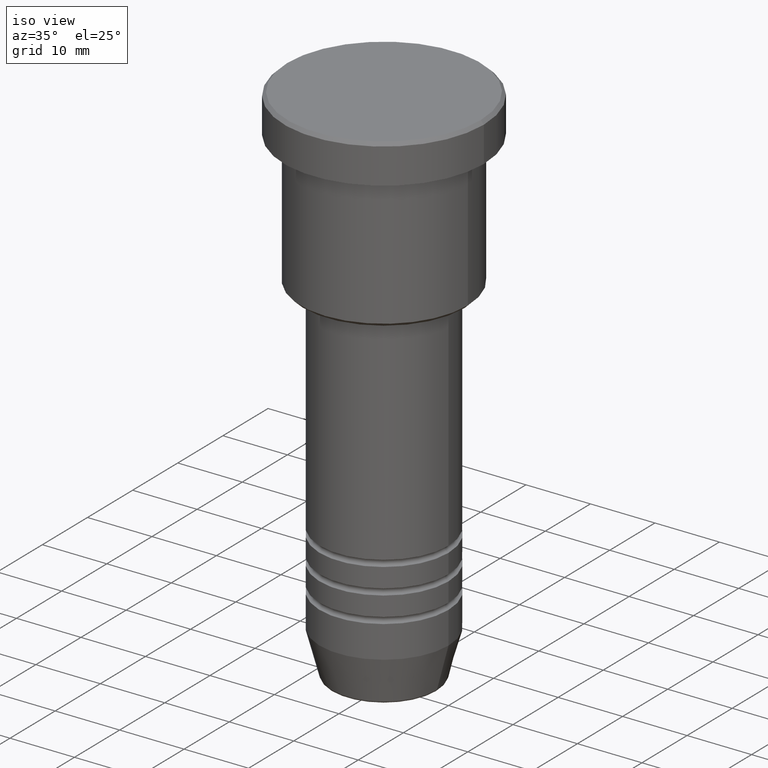
[diagram: clean part render]
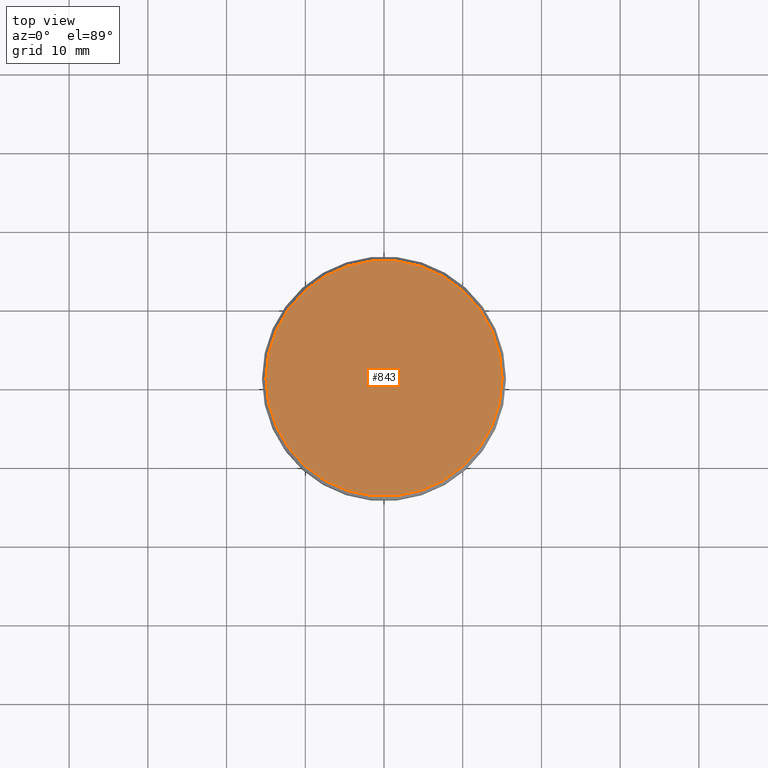
[diagram: tour spotlight — one face highlighted and labeled with its STEP entity id]
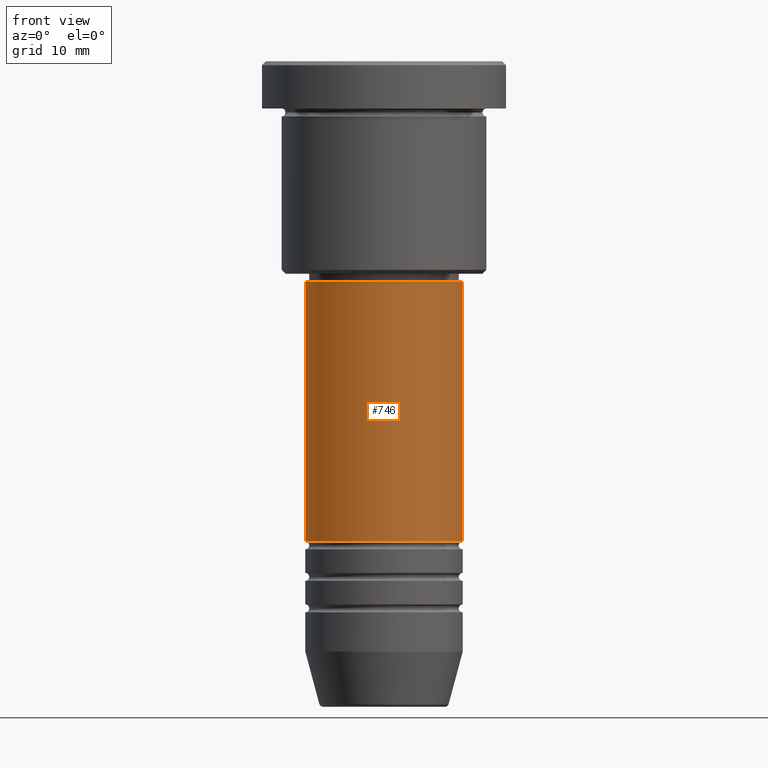
[diagram: tour spotlight — one face highlighted and labeled with its STEP entity id]
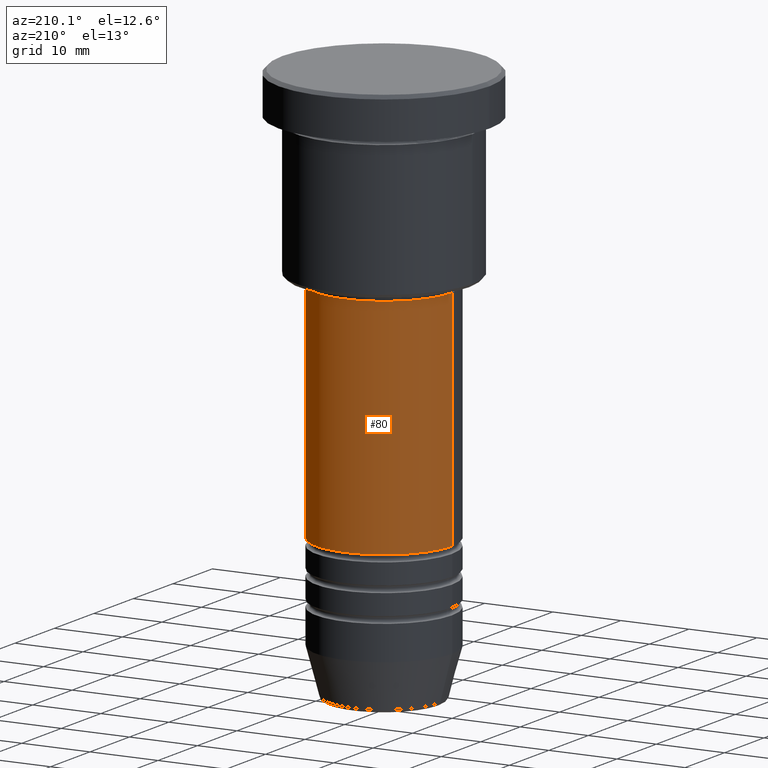
[diagram: tour spotlight — one face highlighted and labeled with its STEP entity id]
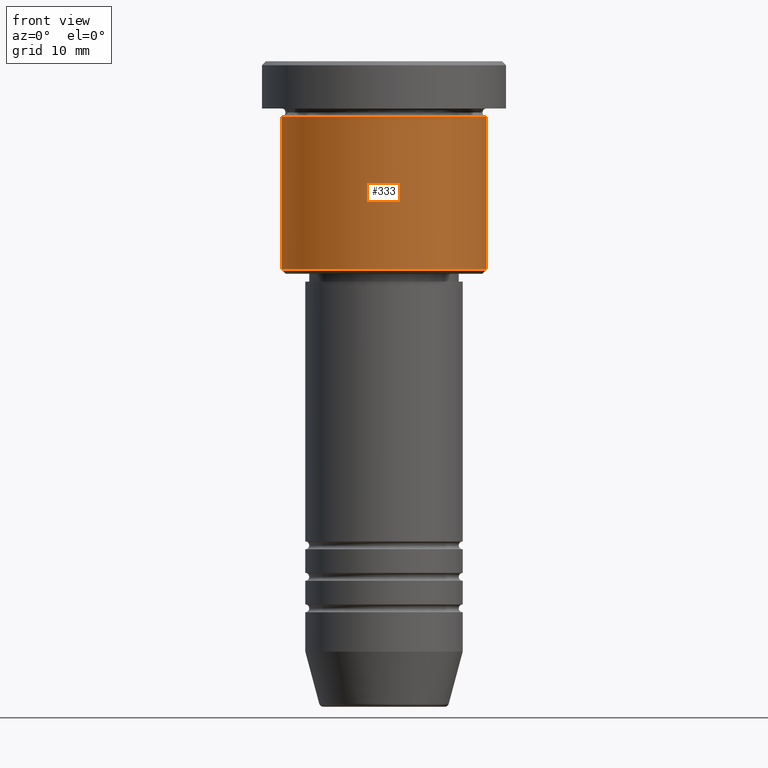
[diagram: tour spotlight — one face highlighted and labeled with its STEP entity id]
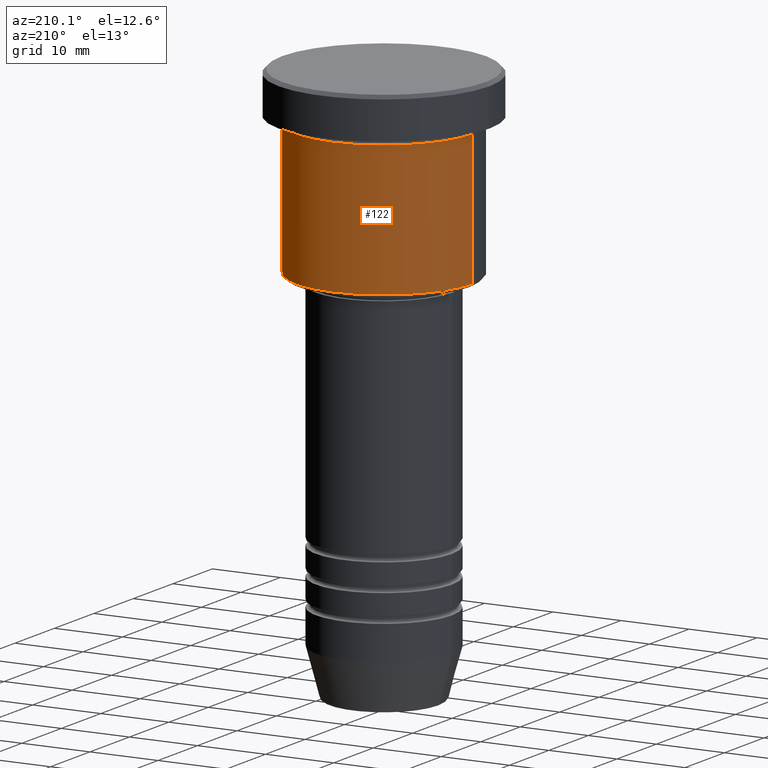
[diagram: tour spotlight — one face highlighted and labeled with its STEP entity id]
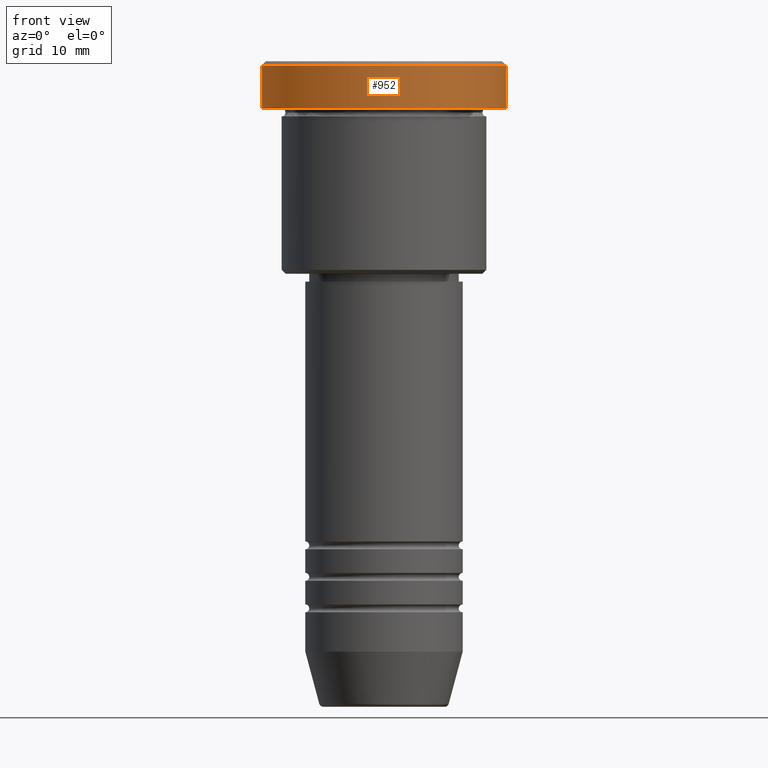
[diagram: tour spotlight — one face highlighted and labeled with its STEP entity id]
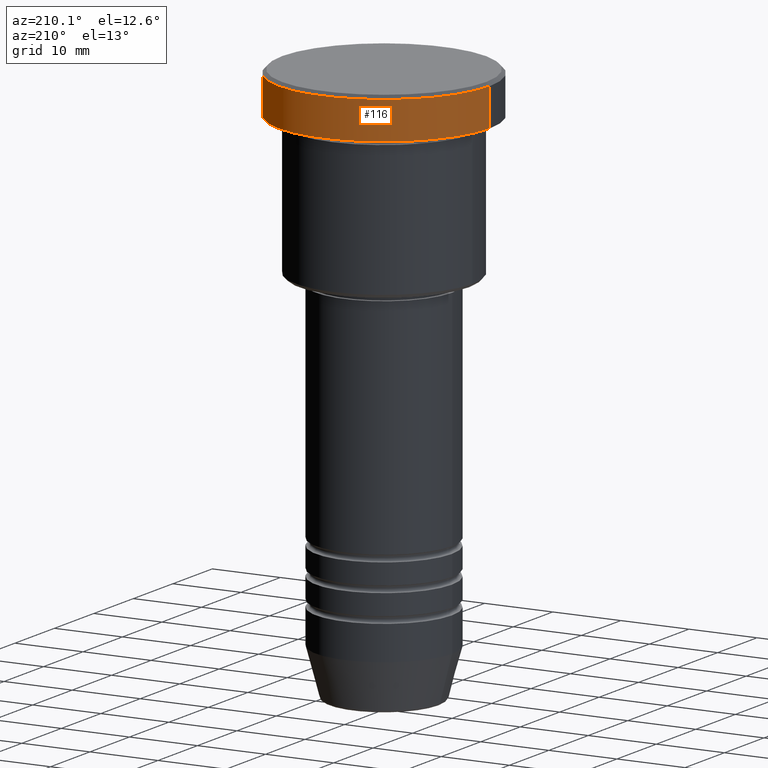
[diagram: tour spotlight — one face highlighted and labeled with its STEP entity id]
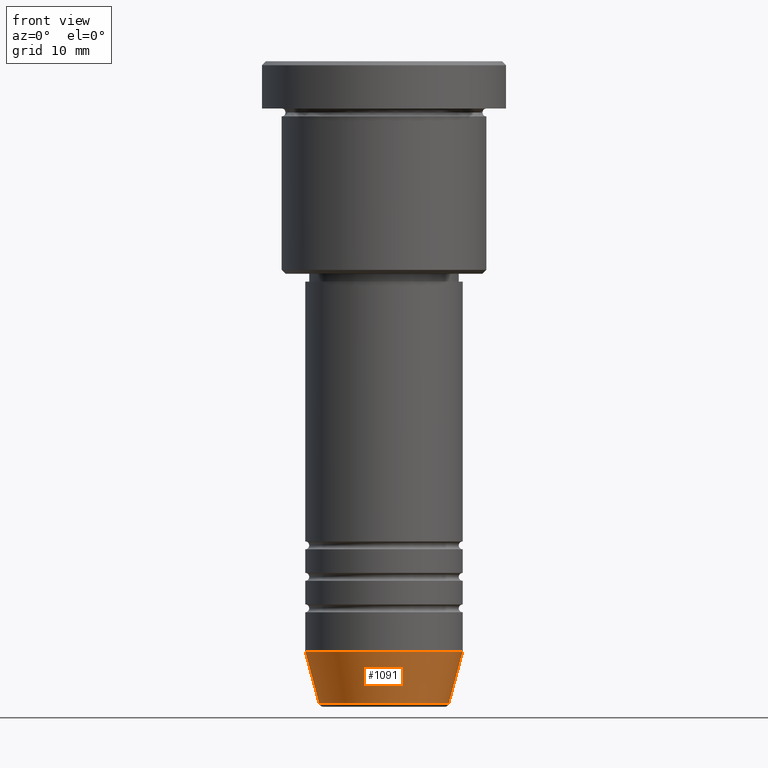
[diagram: tour spotlight — one face highlighted and labeled with its STEP entity id]
A machine part: a face-by-face anatomy tour. The part has 43 B-rep faces; the first image is the clean iso view, then the 8 largest visible faces are spotlighted one at a time (largest first), each with its STEP entity span.

Face 1 — top view, entity #843. In plain terms, the highlighted planar face has unit normal (0, -0, 1).
Definition (entity closure, byte-faithful):
#58 = VERTEX_POINT ( 'NONE', #255 ) ;
#68 = CIRCLE ( 'NONE', #145, 15.00000000000000000 ) ;
#101 = DIRECTION ( 'NONE',  ( 1.000000000000000000, 0.000000000000000000, 0.000000000000000000 ) ) ;
#145 = AXIS2_PLACEMENT_3D ( 'NONE', #616, #1078, #352 ) ;
#181 = DIRECTION ( 'NONE',  ( 1.000000000000000000, 0.000000000000000000, 0.000000000000000000 ) ) ;
#235 = EDGE_LOOP ( 'NONE', ( #338, #982 ) ) ;
#255 = CARTESIAN_POINT ( 'NONE',  ( -15.00000000000000000, 0.000000000000000000, 0.000000000000000000 ) ) ;
#338 = ORIENTED_EDGE ( 'NONE', *, *, #1148, .T. ) ;
#351 = DIRECTION ( 'NONE',  ( 0.000000000000000000, -0.000000000000000000, 1.000000000000000000 ) ) ;
#352 = DIRECTION ( 'NONE',  ( 1.000000000000000000, 0.000000000000000000, 0.000000000000000000 ) ) ;
#367 = AXIS2_PLACEMENT_3D ( 'NONE', #467, #1012, #101 ) ;
#400 = CARTESIAN_POINT ( 'NONE',  ( 15.00000000000000000, 1.867586368699713376E-15, 0.000000000000000000 ) ) ;
#467 = CARTESIAN_POINT ( 'NONE',  ( 0.000000000000000000, 0.000000000000000000, 0.000000000000000000 ) ) ;
#616 = CARTESIAN_POINT ( 'NONE',  ( 0.000000000000000000, 0.000000000000000000, 0.000000000000000000 ) ) ;
#676 = EDGE_CURVE ( 'NONE', #947, #58, #1108, .T. ) ;
#779 = AXIS2_PLACEMENT_3D ( 'NONE', #1087, #351, #181 ) ;
#843 = ADVANCED_FACE ( 'NONE', ( #986 ), #1172, .T. ) ;
#947 = VERTEX_POINT ( 'NONE', #400 ) ;
#982 = ORIENTED_EDGE ( 'NONE', *, *, #676, .T. ) ;
#986 = FACE_OUTER_BOUND ( 'NONE', #235, .T. ) ;
#1012 = DIRECTION ( 'NONE',  ( -0.000000000000000000, -0.000000000000000000, 1.000000000000000000 ) ) ;
#1078 = DIRECTION ( 'NONE',  ( -0.000000000000000000, -0.000000000000000000, 1.000000000000000000 ) ) ;
#1087 = CARTESIAN_POINT ( 'NONE',  ( 0.000000000000000000, 0.000000000000000000, 0.000000000000000000 ) ) ;
#1108 = CIRCLE ( 'NONE', #367, 15.00000000000000000 ) ;
#1148 = EDGE_CURVE ( 'NONE', #58, #947, #68, .T. ) ;
#1172 = PLANE ( 'NONE',  #779 ) ;

Face 2 — front view, entity #746. In plain terms, the highlighted cylindrical surface (partial cylindrical patch) has radius 10 mm, axis along (-0, -0, 1).
Definition (entity closure, byte-faithful):
#13 = CARTESIAN_POINT ( 'NONE',  ( 10.00000000000000000, 0.000000000000000000, 0.000000000000000000 ) ) ;
#35 = AXIS2_PLACEMENT_3D ( 'NONE', #860, #584, #668 ) ;
#72 = EDGE_CURVE ( 'NONE', #1007, #765, #1176, .T. ) ;
#75 = DIRECTION ( 'NONE',  ( -0.000000000000000000, -0.000000000000000000, 1.000000000000000000 ) ) ;
#85 = CARTESIAN_POINT ( 'NONE',  ( -10.00000000000000178, 1.224646799147353454E-15, -60.99999999999988631 ) ) ;
#94 = VERTEX_POINT ( 'NONE', #966 ) ;
#157 = CARTESIAN_POINT ( 'NONE',  ( 9.999999999999998224, 0.000000000000000000, -28.00000000000001776 ) ) ;
#276 = DIRECTION ( 'NONE',  ( 1.000000000000000000, 0.000000000000000000, 0.000000000000000000 ) ) ;
#289 = FACE_OUTER_BOUND ( 'NONE', #844, .T. ) ;
#339 = EDGE_CURVE ( 'NONE', #865, #94, #576, .T. ) ;
#385 = DIRECTION ( 'NONE',  ( -0.000000000000000000, -0.000000000000000000, 1.000000000000000000 ) ) ;
#387 = VECTOR ( 'NONE', #688, 1000.000000000000000 ) ;
#565 = CARTESIAN_POINT ( 'NONE',  ( -9.999999999999998224, 1.224646799147353256E-15, -28.00000000000001776 ) ) ;
#568 = ORIENTED_EDGE ( 'NONE', *, *, #339, .T. ) ;
#571 = CARTESIAN_POINT ( 'NONE',  ( 0.000000000000000000, 0.000000000000000000, 0.000000000000000000 ) ) ;
#576 = CIRCLE ( 'NONE', #35, 10.00000000000000178 ) ;
#580 = CYLINDRICAL_SURFACE ( 'NONE', #649, 10.00000000000000000 ) ;
#584 = DIRECTION ( 'NONE',  ( -0.000000000000000000, -0.000000000000000000, 1.000000000000000000 ) ) ;
#598 = LINE ( 'NONE', #1067, #387 ) ;
#649 = AXIS2_PLACEMENT_3D ( 'NONE', #571, #661, #841 ) ;
#651 = VECTOR ( 'NONE', #385, 1000.000000000000000 ) ;
#661 = DIRECTION ( 'NONE',  ( -0.000000000000000000, -0.000000000000000000, 1.000000000000000000 ) ) ;
#668 = DIRECTION ( 'NONE',  ( 1.000000000000000000, 0.000000000000000000, 0.000000000000000000 ) ) ;
#688 = DIRECTION ( 'NONE',  ( -0.000000000000000000, -0.000000000000000000, 1.000000000000000000 ) ) ;
#746 = ADVANCED_FACE ( 'NONE', ( #289 ), #580, .T. ) ;
#765 = VERTEX_POINT ( 'NONE', #157 ) ;
#768 = EDGE_CURVE ( 'NONE', #865, #1007, #598, .T. ) ;
#791 = AXIS2_PLACEMENT_3D ( 'NONE', #1164, #75, #276 ) ;
#831 = LINE ( 'NONE', #13, #651 ) ;
#841 = DIRECTION ( 'NONE',  ( 1.000000000000000000, 0.000000000000000000, 0.000000000000000000 ) ) ;
#844 = EDGE_LOOP ( 'NONE', ( #874, #568, #1025, #1031 ) ) ;
#860 = CARTESIAN_POINT ( 'NONE',  ( 0.000000000000000000, 0.000000000000000000, -60.99999999999988631 ) ) ;
#865 = VERTEX_POINT ( 'NONE', #85 ) ;
#874 = ORIENTED_EDGE ( 'NONE', *, *, #768, .F. ) ;
#966 = CARTESIAN_POINT ( 'NONE',  ( 10.00000000000000178, 0.000000000000000000, -60.99999999999988631 ) ) ;
#1007 = VERTEX_POINT ( 'NONE', #565 ) ;
#1021 = EDGE_CURVE ( 'NONE', #94, #765, #831, .T. ) ;
#1025 = ORIENTED_EDGE ( 'NONE', *, *, #1021, .T. ) ;
#1031 = ORIENTED_EDGE ( 'NONE', *, *, #72, .F. ) ;
#1067 = CARTESIAN_POINT ( 'NONE',  ( -10.00000000000000000, 1.224646799147353256E-15, 0.000000000000000000 ) ) ;
#1164 = CARTESIAN_POINT ( 'NONE',  ( 0.000000000000000000, 0.000000000000000000, -28.00000000000001776 ) ) ;
#1176 = CIRCLE ( 'NONE', #791, 9.999999999999998224 ) ;

Face 3 — auxiliary view, entity #80. In plain terms, the highlighted cylindrical surface (partial cylindrical patch) has radius 10 mm, axis along (-0, -0, 1).
Definition (entity closure, byte-faithful):
#13 = CARTESIAN_POINT ( 'NONE',  ( 10.00000000000000000, 0.000000000000000000, 0.000000000000000000 ) ) ;
#39 = ORIENTED_EDGE ( 'NONE', *, *, #1064, .T. ) ;
#80 = ADVANCED_FACE ( 'NONE', ( #796 ), #548, .T. ) ;
#85 = CARTESIAN_POINT ( 'NONE',  ( -10.00000000000000178, 1.224646799147353454E-15, -60.99999999999988631 ) ) ;
#94 = VERTEX_POINT ( 'NONE', #966 ) ;
#102 = CARTESIAN_POINT ( 'NONE',  ( 0.000000000000000000, 0.000000000000000000, -28.00000000000001776 ) ) ;
#111 = DIRECTION ( 'NONE',  ( -0.000000000000000000, -0.000000000000000000, 1.000000000000000000 ) ) ;
#157 = CARTESIAN_POINT ( 'NONE',  ( 9.999999999999998224, 0.000000000000000000, -28.00000000000001776 ) ) ;
#385 = DIRECTION ( 'NONE',  ( -0.000000000000000000, -0.000000000000000000, 1.000000000000000000 ) ) ;
#387 = VECTOR ( 'NONE', #688, 1000.000000000000000 ) ;
#408 = AXIS2_PLACEMENT_3D ( 'NONE', #893, #619, #984 ) ;
#472 = CIRCLE ( 'NONE', #611, 10.00000000000000178 ) ;
#498 = DIRECTION ( 'NONE',  ( -0.000000000000000000, -0.000000000000000000, 1.000000000000000000 ) ) ;
#501 = ORIENTED_EDGE ( 'NONE', *, *, #1021, .F. ) ;
#521 = AXIS2_PLACEMENT_3D ( 'NONE', #102, #498, #834 ) ;
#548 = CYLINDRICAL_SURFACE ( 'NONE', #408, 10.00000000000000000 ) ;
#565 = CARTESIAN_POINT ( 'NONE',  ( -9.999999999999998224, 1.224646799147353256E-15, -28.00000000000001776 ) ) ;
#598 = LINE ( 'NONE', #1067, #387 ) ;
#611 = AXIS2_PLACEMENT_3D ( 'NONE', #931, #111, #845 ) ;
#619 = DIRECTION ( 'NONE',  ( -0.000000000000000000, -0.000000000000000000, 1.000000000000000000 ) ) ;
#651 = VECTOR ( 'NONE', #385, 1000.000000000000000 ) ;
#688 = DIRECTION ( 'NONE',  ( -0.000000000000000000, -0.000000000000000000, 1.000000000000000000 ) ) ;
#692 = ORIENTED_EDGE ( 'NONE', *, *, #768, .T. ) ;
#717 = ORIENTED_EDGE ( 'NONE', *, *, #918, .F. ) ;
#763 = CIRCLE ( 'NONE', #521, 9.999999999999998224 ) ;
#765 = VERTEX_POINT ( 'NONE', #157 ) ;
#768 = EDGE_CURVE ( 'NONE', #865, #1007, #598, .T. ) ;
#796 = FACE_OUTER_BOUND ( 'NONE', #1051, .T. ) ;
#831 = LINE ( 'NONE', #13, #651 ) ;
#834 = DIRECTION ( 'NONE',  ( 1.000000000000000000, 0.000000000000000000, 0.000000000000000000 ) ) ;
#845 = DIRECTION ( 'NONE',  ( 1.000000000000000000, 0.000000000000000000, 0.000000000000000000 ) ) ;
#865 = VERTEX_POINT ( 'NONE', #85 ) ;
#893 = CARTESIAN_POINT ( 'NONE',  ( 0.000000000000000000, 0.000000000000000000, 0.000000000000000000 ) ) ;
#918 = EDGE_CURVE ( 'NONE', #765, #1007, #763, .T. ) ;
#931 = CARTESIAN_POINT ( 'NONE',  ( 0.000000000000000000, 0.000000000000000000, -60.99999999999988631 ) ) ;
#966 = CARTESIAN_POINT ( 'NONE',  ( 10.00000000000000178, 0.000000000000000000, -60.99999999999988631 ) ) ;
#984 = DIRECTION ( 'NONE',  ( 1.000000000000000000, 0.000000000000000000, 0.000000000000000000 ) ) ;
#1007 = VERTEX_POINT ( 'NONE', #565 ) ;
#1021 = EDGE_CURVE ( 'NONE', #94, #765, #831, .T. ) ;
#1051 = EDGE_LOOP ( 'NONE', ( #39, #692, #717, #501 ) ) ;
#1064 = EDGE_CURVE ( 'NONE', #94, #865, #472, .T. ) ;
#1067 = CARTESIAN_POINT ( 'NONE',  ( -10.00000000000000000, 1.224646799147353256E-15, 0.000000000000000000 ) ) ;

Face 4 — front view, entity #333. In plain terms, the highlighted cylindrical surface (partial cylindrical patch) has radius 13 mm, axis along (-0, -0, 1).
Definition (entity closure, byte-faithful):
#1 = EDGE_CURVE ( 'NONE', #1079, #195, #685, .T. ) ;
#16 = CARTESIAN_POINT ( 'NONE',  ( 13.00000000000000178, 0.000000000000000000, 0.000000000000000000 ) ) ;
#26 = CARTESIAN_POINT ( 'NONE',  ( -13.00000000000000178, 1.592040838891559293E-15, -6.999999999999995559 ) ) ;
#27 = FACE_OUTER_BOUND ( 'NONE', #940, .T. ) ;
#56 = CARTESIAN_POINT ( 'NONE',  ( 0.000000000000000000, 0.000000000000000000, -6.999999999999995559 ) ) ;
#65 = DIRECTION ( 'NONE',  ( -0.000000000000000000, -0.000000000000000000, 1.000000000000000000 ) ) ;
#190 = CARTESIAN_POINT ( 'NONE',  ( 13.00000000000000178, 0.000000000000000000, -6.999999999999995559 ) ) ;
#195 = VERTEX_POINT ( 'NONE', #190 ) ;
#208 = AXIS2_PLACEMENT_3D ( 'NONE', #462, #65, #1159 ) ;
#231 = ORIENTED_EDGE ( 'NONE', *, *, #644, .T. ) ;
#244 = ORIENTED_EDGE ( 'NONE', *, *, #1006, .F. ) ;
#292 = CYLINDRICAL_SURFACE ( 'NONE', #556, 13.00000000000000178 ) ;
#333 = ADVANCED_FACE ( 'NONE', ( #27 ), #292, .T. ) ;
#402 = CARTESIAN_POINT ( 'NONE',  ( 0.000000000000000000, 0.000000000000000000, 0.000000000000000000 ) ) ;
#427 = AXIS2_PLACEMENT_3D ( 'NONE', #56, #1055, #604 ) ;
#435 = VERTEX_POINT ( 'NONE', #613 ) ;
#462 = CARTESIAN_POINT ( 'NONE',  ( 0.000000000000000000, 0.000000000000000000, -26.50000000000000355 ) ) ;
#488 = VECTOR ( 'NONE', #1010, 1000.000000000000000 ) ;
#556 = AXIS2_PLACEMENT_3D ( 'NONE', #402, #755, #1112 ) ;
#604 = DIRECTION ( 'NONE',  ( 1.000000000000000000, 0.000000000000000000, 0.000000000000000000 ) ) ;
#613 = CARTESIAN_POINT ( 'NONE',  ( 13.00000000000000178, 0.000000000000000000, -26.50000000000000355 ) ) ;
#621 = CARTESIAN_POINT ( 'NONE',  ( -13.00000000000000178, 1.592040838891559293E-15, -26.50000000000000355 ) ) ;
#644 = EDGE_CURVE ( 'NONE', #891, #435, #945, .T. ) ;
#674 = LINE ( 'NONE', #16, #1138 ) ;
#685 = CIRCLE ( 'NONE', #427, 13.00000000000000178 ) ;
#742 = LINE ( 'NONE', #748, #488 ) ;
#748 = CARTESIAN_POINT ( 'NONE',  ( -13.00000000000000178, 1.592040838891559293E-15, 0.000000000000000000 ) ) ;
#755 = DIRECTION ( 'NONE',  ( -0.000000000000000000, -0.000000000000000000, 1.000000000000000000 ) ) ;
#891 = VERTEX_POINT ( 'NONE', #621 ) ;
#934 = EDGE_CURVE ( 'NONE', #435, #195, #674, .T. ) ;
#940 = EDGE_LOOP ( 'NONE', ( #244, #231, #968, #1044 ) ) ;
#945 = CIRCLE ( 'NONE', #208, 13.00000000000000178 ) ;
#964 = DIRECTION ( 'NONE',  ( -0.000000000000000000, -0.000000000000000000, 1.000000000000000000 ) ) ;
#968 = ORIENTED_EDGE ( 'NONE', *, *, #934, .T. ) ;
#1006 = EDGE_CURVE ( 'NONE', #891, #1079, #742, .T. ) ;
#1010 = DIRECTION ( 'NONE',  ( -0.000000000000000000, -0.000000000000000000, 1.000000000000000000 ) ) ;
#1044 = ORIENTED_EDGE ( 'NONE', *, *, #1, .F. ) ;
#1055 = DIRECTION ( 'NONE',  ( -0.000000000000000000, -0.000000000000000000, 1.000000000000000000 ) ) ;
#1079 = VERTEX_POINT ( 'NONE', #26 ) ;
#1112 = DIRECTION ( 'NONE',  ( 1.000000000000000000, 0.000000000000000000, 0.000000000000000000 ) ) ;
#1138 = VECTOR ( 'NONE', #964, 1000.000000000000000 ) ;
#1159 = DIRECTION ( 'NONE',  ( -1.000000000000000000, 0.000000000000000000, 0.000000000000000000 ) ) ;

Face 5 — auxiliary view, entity #122. In plain terms, the highlighted cylindrical surface (partial cylindrical patch) has radius 13 mm, axis along (-0, -0, 1).
Definition (entity closure, byte-faithful):
#16 = CARTESIAN_POINT ( 'NONE',  ( 13.00000000000000178, 0.000000000000000000, 0.000000000000000000 ) ) ;
#26 = CARTESIAN_POINT ( 'NONE',  ( -13.00000000000000178, 1.592040838891559293E-15, -6.999999999999995559 ) ) ;
#38 = AXIS2_PLACEMENT_3D ( 'NONE', #882, #829, #1101 ) ;
#45 = ORIENTED_EDGE ( 'NONE', *, *, #934, .F. ) ;
#61 = DIRECTION ( 'NONE',  ( -0.000000000000000000, -0.000000000000000000, 1.000000000000000000 ) ) ;
#64 = FACE_OUTER_BOUND ( 'NONE', #896, .T. ) ;
#110 = CIRCLE ( 'NONE', #38, 13.00000000000000178 ) ;
#122 = ADVANCED_FACE ( 'NONE', ( #64 ), #634, .T. ) ;
#128 = AXIS2_PLACEMENT_3D ( 'NONE', #155, #886, #454 ) ;
#142 = EDGE_CURVE ( 'NONE', #195, #1079, #447, .T. ) ;
#155 = CARTESIAN_POINT ( 'NONE',  ( 0.000000000000000000, 0.000000000000000000, -6.999999999999995559 ) ) ;
#162 = CARTESIAN_POINT ( 'NONE',  ( 0.000000000000000000, 0.000000000000000000, 0.000000000000000000 ) ) ;
#190 = CARTESIAN_POINT ( 'NONE',  ( 13.00000000000000178, 0.000000000000000000, -6.999999999999995559 ) ) ;
#195 = VERTEX_POINT ( 'NONE', #190 ) ;
#435 = VERTEX_POINT ( 'NONE', #613 ) ;
#440 = DIRECTION ( 'NONE',  ( 1.000000000000000000, 0.000000000000000000, 0.000000000000000000 ) ) ;
#447 = CIRCLE ( 'NONE', #128, 13.00000000000000178 ) ;
#454 = DIRECTION ( 'NONE',  ( 1.000000000000000000, 0.000000000000000000, 0.000000000000000000 ) ) ;
#488 = VECTOR ( 'NONE', #1010, 1000.000000000000000 ) ;
#510 = ORIENTED_EDGE ( 'NONE', *, *, #142, .F. ) ;
#592 = AXIS2_PLACEMENT_3D ( 'NONE', #162, #61, #440 ) ;
#613 = CARTESIAN_POINT ( 'NONE',  ( 13.00000000000000178, 0.000000000000000000, -26.50000000000000355 ) ) ;
#621 = CARTESIAN_POINT ( 'NONE',  ( -13.00000000000000178, 1.592040838891559293E-15, -26.50000000000000355 ) ) ;
#634 = CYLINDRICAL_SURFACE ( 'NONE', #592, 13.00000000000000178 ) ;
#657 = ORIENTED_EDGE ( 'NONE', *, *, #1006, .T. ) ;
#674 = LINE ( 'NONE', #16, #1138 ) ;
#742 = LINE ( 'NONE', #748, #488 ) ;
#748 = CARTESIAN_POINT ( 'NONE',  ( -13.00000000000000178, 1.592040838891559293E-15, 0.000000000000000000 ) ) ;
#811 = EDGE_CURVE ( 'NONE', #435, #891, #110, .T. ) ;
#812 = ORIENTED_EDGE ( 'NONE', *, *, #811, .T. ) ;
#829 = DIRECTION ( 'NONE',  ( -0.000000000000000000, -0.000000000000000000, 1.000000000000000000 ) ) ;
#882 = CARTESIAN_POINT ( 'NONE',  ( 0.000000000000000000, 0.000000000000000000, -26.50000000000000355 ) ) ;
#886 = DIRECTION ( 'NONE',  ( -0.000000000000000000, -0.000000000000000000, 1.000000000000000000 ) ) ;
#891 = VERTEX_POINT ( 'NONE', #621 ) ;
#896 = EDGE_LOOP ( 'NONE', ( #812, #657, #510, #45 ) ) ;
#934 = EDGE_CURVE ( 'NONE', #435, #195, #674, .T. ) ;
#964 = DIRECTION ( 'NONE',  ( -0.000000000000000000, -0.000000000000000000, 1.000000000000000000 ) ) ;
#1006 = EDGE_CURVE ( 'NONE', #891, #1079, #742, .T. ) ;
#1010 = DIRECTION ( 'NONE',  ( -0.000000000000000000, -0.000000000000000000, 1.000000000000000000 ) ) ;
#1079 = VERTEX_POINT ( 'NONE', #26 ) ;
#1101 = DIRECTION ( 'NONE',  ( -1.000000000000000000, 0.000000000000000000, 0.000000000000000000 ) ) ;
#1138 = VECTOR ( 'NONE', #964, 1000.000000000000000 ) ;

Face 6 — front view, entity #952. In plain terms, the highlighted cylindrical surface (partial cylindrical patch) has radius 15.5 mm, axis along (-0, -0, 1).
Definition (entity closure, byte-faithful):
#15 = LINE ( 'NONE', #745, #70 ) ;
#59 = DIRECTION ( 'NONE',  ( -0.000000000000000000, -0.000000000000000000, 1.000000000000000000 ) ) ;
#70 = VECTOR ( 'NONE', #926, 1000.000000000000000 ) ;
#73 = DIRECTION ( 'NONE',  ( -0.000000000000000000, -0.000000000000000000, 1.000000000000000000 ) ) ;
#88 = CIRCLE ( 'NONE', #107, 15.50000000000000000 ) ;
#107 = AXIS2_PLACEMENT_3D ( 'NONE', #713, #1075, #360 ) ;
#135 = VERTEX_POINT ( 'NONE', #355 ) ;
#158 = ORIENTED_EDGE ( 'NONE', *, *, #681, .F. ) ;
#159 = EDGE_CURVE ( 'NONE', #418, #943, #88, .T. ) ;
#160 = CYLINDRICAL_SURFACE ( 'NONE', #1180, 15.50000000000000000 ) ;
#201 = DIRECTION ( 'NONE',  ( 1.000000000000000000, 0.000000000000000000, 0.000000000000000000 ) ) ;
#219 = ORIENTED_EDGE ( 'NONE', *, *, #469, .T. ) ;
#336 = CARTESIAN_POINT ( 'NONE',  ( 15.50000000000000000, 0.000000000000000000, 0.000000000000000000 ) ) ;
#343 = VECTOR ( 'NONE', #73, 1000.000000000000000 ) ;
#355 = CARTESIAN_POINT ( 'NONE',  ( 15.50000000000000000, 0.000000000000000000, -5.999999999999995559 ) ) ;
#360 = DIRECTION ( 'NONE',  ( 1.000000000000000000, 0.000000000000000000, 0.000000000000000000 ) ) ;
#418 = VERTEX_POINT ( 'NONE', #957 ) ;
#423 = ORIENTED_EDGE ( 'NONE', *, *, #159, .T. ) ;
#433 = EDGE_CURVE ( 'NONE', #135, #418, #543, .T. ) ;
#448 = CIRCLE ( 'NONE', #485, 15.50000000000000000 ) ;
#459 = CARTESIAN_POINT ( 'NONE',  ( -15.50000000000000000, 1.898202538678397557E-15, -0.4999999999999987232 ) ) ;
#469 = EDGE_CURVE ( 'NONE', #802, #135, #448, .T. ) ;
#485 = AXIS2_PLACEMENT_3D ( 'NONE', #875, #59, #1149 ) ;
#531 = CARTESIAN_POINT ( 'NONE',  ( 0.000000000000000000, 0.000000000000000000, 0.000000000000000000 ) ) ;
#543 = LINE ( 'NONE', #336, #343 ) ;
#681 = EDGE_CURVE ( 'NONE', #802, #943, #15, .T. ) ;
#713 = CARTESIAN_POINT ( 'NONE',  ( 0.000000000000000000, 0.000000000000000000, -0.4999999999999987232 ) ) ;
#745 = CARTESIAN_POINT ( 'NONE',  ( -15.50000000000000000, 1.898202538678397557E-15, 0.000000000000000000 ) ) ;
#781 = ORIENTED_EDGE ( 'NONE', *, *, #433, .T. ) ;
#789 = FACE_OUTER_BOUND ( 'NONE', #1119, .T. ) ;
#802 = VERTEX_POINT ( 'NONE', #1052 ) ;
#813 = DIRECTION ( 'NONE',  ( -0.000000000000000000, -0.000000000000000000, 1.000000000000000000 ) ) ;
#875 = CARTESIAN_POINT ( 'NONE',  ( 0.000000000000000000, 0.000000000000000000, -5.999999999999995559 ) ) ;
#926 = DIRECTION ( 'NONE',  ( -0.000000000000000000, -0.000000000000000000, 1.000000000000000000 ) ) ;
#943 = VERTEX_POINT ( 'NONE', #459 ) ;
#952 = ADVANCED_FACE ( 'NONE', ( #789 ), #160, .T. ) ;
#957 = CARTESIAN_POINT ( 'NONE',  ( 15.50000000000000000, 0.000000000000000000, -0.4999999999999987232 ) ) ;
#1052 = CARTESIAN_POINT ( 'NONE',  ( -15.50000000000000000, 1.898202538678397557E-15, -5.999999999999995559 ) ) ;
#1075 = DIRECTION ( 'NONE',  ( 0.000000000000000000, 0.000000000000000000, -1.000000000000000000 ) ) ;
#1119 = EDGE_LOOP ( 'NONE', ( #158, #219, #781, #423 ) ) ;
#1149 = DIRECTION ( 'NONE',  ( 1.000000000000000000, 0.000000000000000000, 0.000000000000000000 ) ) ;
#1180 = AXIS2_PLACEMENT_3D ( 'NONE', #531, #813, #201 ) ;

Face 7 — auxiliary view, entity #116. In plain terms, the highlighted cylindrical surface (partial cylindrical patch) has radius 15.5 mm, axis along (-0, -0, 1).
Definition (entity closure, byte-faithful):
#15 = LINE ( 'NONE', #745, #70 ) ;
#70 = VECTOR ( 'NONE', #926, 1000.000000000000000 ) ;
#73 = DIRECTION ( 'NONE',  ( -0.000000000000000000, -0.000000000000000000, 1.000000000000000000 ) ) ;
#116 = ADVANCED_FACE ( 'NONE', ( #1158 ), #370, .T. ) ;
#132 = ORIENTED_EDGE ( 'NONE', *, *, #681, .T. ) ;
#135 = VERTEX_POINT ( 'NONE', #355 ) ;
#193 = DIRECTION ( 'NONE',  ( 0.000000000000000000, 0.000000000000000000, -1.000000000000000000 ) ) ;
#199 = ORIENTED_EDGE ( 'NONE', *, *, #433, .F. ) ;
#320 = CARTESIAN_POINT ( 'NONE',  ( 0.000000000000000000, 0.000000000000000000, -5.999999999999995559 ) ) ;
#336 = CARTESIAN_POINT ( 'NONE',  ( 15.50000000000000000, 0.000000000000000000, 0.000000000000000000 ) ) ;
#343 = VECTOR ( 'NONE', #73, 1000.000000000000000 ) ;
#355 = CARTESIAN_POINT ( 'NONE',  ( 15.50000000000000000, 0.000000000000000000, -5.999999999999995559 ) ) ;
#370 = CYLINDRICAL_SURFACE ( 'NONE', #981, 15.50000000000000000 ) ;
#378 = ORIENTED_EDGE ( 'NONE', *, *, #878, .T. ) ;
#406 = EDGE_CURVE ( 'NONE', #135, #802, #818, .T. ) ;
#418 = VERTEX_POINT ( 'NONE', #957 ) ;
#426 = DIRECTION ( 'NONE',  ( 1.000000000000000000, 0.000000000000000000, 0.000000000000000000 ) ) ;
#433 = EDGE_CURVE ( 'NONE', #135, #418, #543, .T. ) ;
#452 = AXIS2_PLACEMENT_3D ( 'NONE', #645, #193, #915 ) ;
#459 = CARTESIAN_POINT ( 'NONE',  ( -15.50000000000000000, 1.898202538678397557E-15, -0.4999999999999987232 ) ) ;
#470 = AXIS2_PLACEMENT_3D ( 'NONE', #320, #941, #426 ) ;
#523 = DIRECTION ( 'NONE',  ( 1.000000000000000000, 0.000000000000000000, 0.000000000000000000 ) ) ;
#533 = DIRECTION ( 'NONE',  ( -0.000000000000000000, -0.000000000000000000, 1.000000000000000000 ) ) ;
#543 = LINE ( 'NONE', #336, #343 ) ;
#559 = CIRCLE ( 'NONE', #452, 15.50000000000000000 ) ;
#645 = CARTESIAN_POINT ( 'NONE',  ( 0.000000000000000000, 0.000000000000000000, -0.4999999999999987232 ) ) ;
#681 = EDGE_CURVE ( 'NONE', #802, #943, #15, .T. ) ;
#745 = CARTESIAN_POINT ( 'NONE',  ( -15.50000000000000000, 1.898202538678397557E-15, 0.000000000000000000 ) ) ;
#802 = VERTEX_POINT ( 'NONE', #1052 ) ;
#818 = CIRCLE ( 'NONE', #470, 15.50000000000000000 ) ;
#878 = EDGE_CURVE ( 'NONE', #943, #418, #559, .T. ) ;
#915 = DIRECTION ( 'NONE',  ( 1.000000000000000000, 0.000000000000000000, 0.000000000000000000 ) ) ;
#926 = DIRECTION ( 'NONE',  ( -0.000000000000000000, -0.000000000000000000, 1.000000000000000000 ) ) ;
#941 = DIRECTION ( 'NONE',  ( -0.000000000000000000, -0.000000000000000000, 1.000000000000000000 ) ) ;
#943 = VERTEX_POINT ( 'NONE', #459 ) ;
#957 = CARTESIAN_POINT ( 'NONE',  ( 15.50000000000000000, 0.000000000000000000, -0.4999999999999987232 ) ) ;
#977 = CARTESIAN_POINT ( 'NONE',  ( 0.000000000000000000, 0.000000000000000000, 0.000000000000000000 ) ) ;
#981 = AXIS2_PLACEMENT_3D ( 'NONE', #977, #533, #523 ) ;
#1001 = EDGE_LOOP ( 'NONE', ( #1145, #132, #378, #199 ) ) ;
#1052 = CARTESIAN_POINT ( 'NONE',  ( -15.50000000000000000, 1.898202538678397557E-15, -5.999999999999995559 ) ) ;
#1145 = ORIENTED_EDGE ( 'NONE', *, *, #406, .T. ) ;
#1158 = FACE_OUTER_BOUND ( 'NONE', #1001, .T. ) ;

Face 8 — front view, entity #1091. In plain terms, the highlighted conical surface has half-angle 15 deg.
Definition (entity closure, byte-faithful):
#25 = VERTEX_POINT ( 'NONE', #854 ) ;
#47 = CARTESIAN_POINT ( 'NONE',  ( -10.00000000000000000, 1.224646799147353256E-15, -75.00000000000000000 ) ) ;
#91 = CONICAL_SURFACE ( 'NONE', #171, 10.00000000000000000, 0.2617993877991498519 ) ;
#120 = VERTEX_POINT ( 'NONE', #1150 ) ;
#139 = ORIENTED_EDGE ( 'NONE', *, *, #1173, .T. ) ;
#154 = LINE ( 'NONE', #443, #306 ) ;
#171 = AXIS2_PLACEMENT_3D ( 'NONE', #890, #1161, #555 ) ;
#264 = DIRECTION ( 'NONE',  ( -0.000000000000000000, -0.000000000000000000, 1.000000000000000000 ) ) ;
#284 = DIRECTION ( 'NONE',  ( -0.000000000000000000, -0.000000000000000000, 1.000000000000000000 ) ) ;
#306 = VECTOR ( 'NONE', #532, 1000.000000000000114 ) ;
#344 = ORIENTED_EDGE ( 'NONE', *, *, #762, .T. ) ;
#348 = CARTESIAN_POINT ( 'NONE',  ( -8.223655072137194821, 1.115877042642912054E-15, -81.62940952255125637 ) ) ;
#353 = EDGE_LOOP ( 'NONE', ( #1036, #139, #344, #774 ) ) ;
#371 = FACE_OUTER_BOUND ( 'NONE', #353, .T. ) ;
#373 = DIRECTION ( 'NONE',  ( 1.000000000000000000, 0.000000000000000000, 0.000000000000000000 ) ) ;
#401 = VERTEX_POINT ( 'NONE', #47 ) ;
#443 = CARTESIAN_POINT ( 'NONE',  ( -10.00000000000000000, 1.224646799147353256E-15, -75.00000000000000000 ) ) ;
#490 = EDGE_CURVE ( 'NONE', #506, #401, #154, .T. ) ;
#503 = AXIS2_PLACEMENT_3D ( 'NONE', #1103, #284, #373 ) ;
#506 = VERTEX_POINT ( 'NONE', #348 ) ;
#532 = DIRECTION ( 'NONE',  ( -0.2588190451025211281, 3.169619151431769872E-17, 0.9659258262890680902 ) ) ;
#538 = CARTESIAN_POINT ( 'NONE',  ( 0.000000000000000000, 0.000000000000000000, -81.62940952255125637 ) ) ;
#555 = DIRECTION ( 'NONE',  ( 1.000000000000000000, 0.000000000000000000, 0.000000000000000000 ) ) ;
#560 = CIRCLE ( 'NONE', #739, 8.223655072137194821 ) ;
#739 = AXIS2_PLACEMENT_3D ( 'NONE', #538, #264, #974 ) ;
#762 = EDGE_CURVE ( 'NONE', #120, #25, #799, .T. ) ;
#774 = ORIENTED_EDGE ( 'NONE', *, *, #973, .F. ) ;
#799 = LINE ( 'NONE', #868, #887 ) ;
#854 = CARTESIAN_POINT ( 'NONE',  ( 10.00000000000000000, 0.000000000000000000, -75.00000000000000000 ) ) ;
#868 = CARTESIAN_POINT ( 'NONE',  ( 10.00000000000000000, 0.000000000000000000, -75.00000000000000000 ) ) ;
#873 = CIRCLE ( 'NONE', #503, 10.00000000000000000 ) ;
#887 = VECTOR ( 'NONE', #1160, 1000.000000000000114 ) ;
#890 = CARTESIAN_POINT ( 'NONE',  ( 0.000000000000000000, 0.000000000000000000, -75.00000000000000000 ) ) ;
#973 = EDGE_CURVE ( 'NONE', #401, #25, #873, .T. ) ;
#974 = DIRECTION ( 'NONE',  ( 1.000000000000000000, 0.000000000000000000, 0.000000000000000000 ) ) ;
#1036 = ORIENTED_EDGE ( 'NONE', *, *, #490, .F. ) ;
#1091 = ADVANCED_FACE ( 'NONE', ( #371 ), #91, .T. ) ;
#1103 = CARTESIAN_POINT ( 'NONE',  ( 0.000000000000000000, 0.000000000000000000, -75.00000000000000000 ) ) ;
#1150 = CARTESIAN_POINT ( 'NONE',  ( 8.223655072137194821, 0.000000000000000000, -81.62940952255125637 ) ) ;
#1160 = DIRECTION ( 'NONE',  ( 0.2588190451025211281, 0.000000000000000000, 0.9659258262890680902 ) ) ;
#1161 = DIRECTION ( 'NONE',  ( -0.000000000000000000, -0.000000000000000000, 1.000000000000000000 ) ) ;
#1173 = EDGE_CURVE ( 'NONE', #506, #120, #560, .T. ) ;